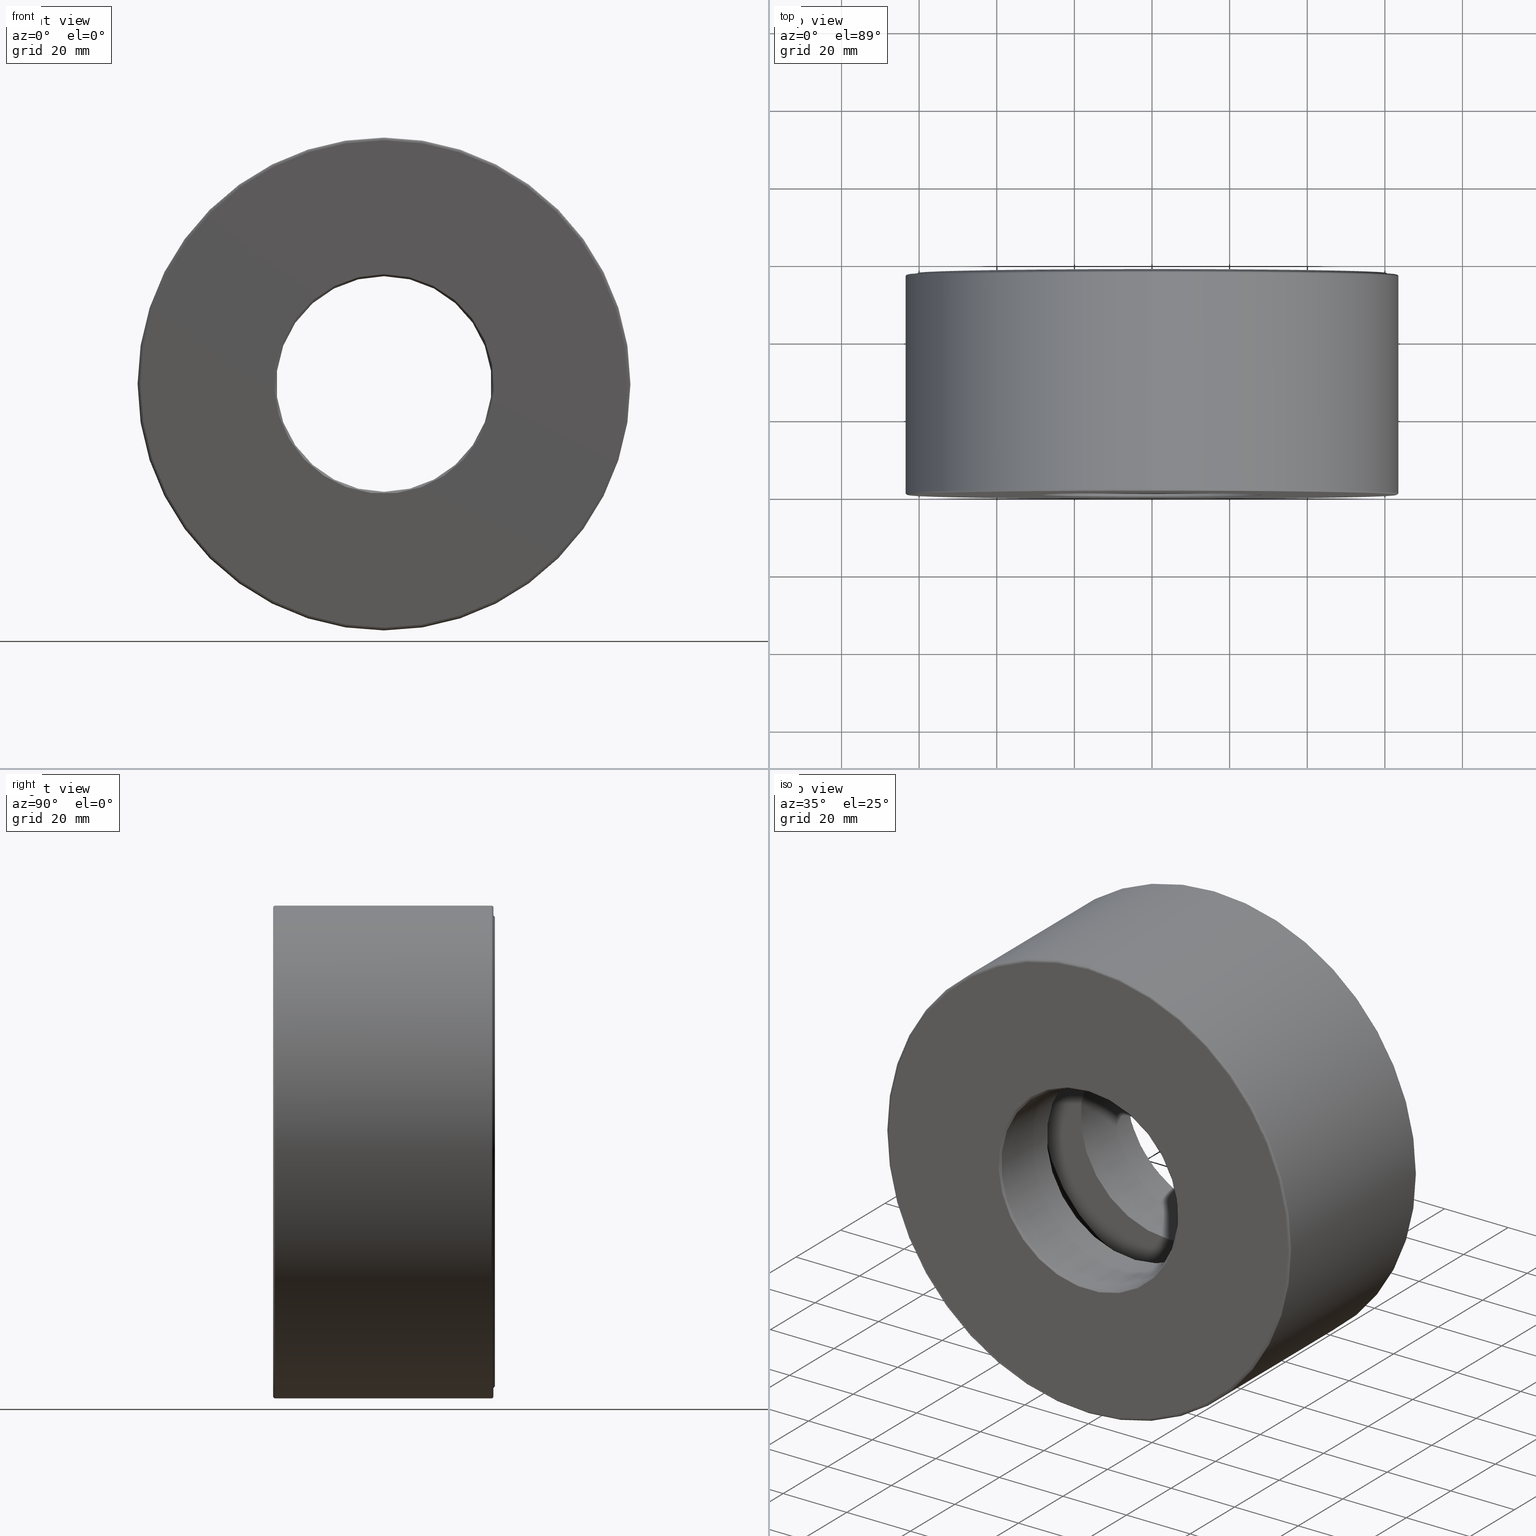
[diagram: canonical four-view strip — front | top / right | iso, engineering-drawing reading convention]
A machine part, canonical four-view strip (front | top / right | iso — engineering-drawing reading convention). The complete STEP part file that produces these views, byte-faithful:
ISO-10303-21;
HEADER;
FILE_DESCRIPTION (( 'STEP AP203' ),
    '1' );
FILE_NAME ('T-100-48.step',
    '2016-06-29T18:27:41',
    ( '' ),
    ( '' ),
    'SwSTEP 2.0',
    'SolidWorks 2016',
    '' );
FILE_SCHEMA (( 'CONFIG_CONTROL_DESIGN' ));
ENDSEC;

DATA;
#1 = FACE_OUTER_BOUND ( 'NONE', #229, .T. ) ;
#2 = CARTESIAN_POINT ( 'NONE',  ( 0.0000000000000000000, -1.515321933985646100E-016, 0.0000000000000000000 ) ) ;
#3 = CARTESIAN_POINT ( 'NONE',  ( 0.0000000000000000000, 0.0000000000000000000, 0.0000000000000000000 ) ) ;
#4 = CARTESIAN_POINT ( 'NONE',  ( 0.0000000000000000000, 1.125000000000000000, 0.0000000000000000000 ) ) ;
#5 = EDGE_LOOP ( 'NONE', ( #313 ) ) ;
#6 = ADVANCED_FACE ( 'NONE', ( #316, #69 ), #331, .F. ) ;
#7 = EDGE_LOOP ( 'NONE', ( #575 ) ) ;
#8 = DIRECTION ( 'NONE',  ( 0.0000000000000000000, 0.0000000000000000000, 1.000000000000000000 ) ) ;
#9 = CARTESIAN_POINT ( 'NONE',  ( -2.361209633078072800E-016, 0.8250000000000004000, 0.0000000000000000000 ) ) ;
#10 = ADVANCED_FACE ( 'NONE', ( ), #300, .T. ) ;
#11 = CARTESIAN_POINT ( 'NONE',  ( 0.0000000000000000000, 2.249999999999999600, 0.0000000000000000000 ) ) ;
#12 = ORIENTED_EDGE ( 'NONE', *, *, #188, .T. ) ;
#13 = AXIS2_PLACEMENT_3D ( 'NONE', #82, #453, #264 ) ;
#14 = DIRECTION ( 'NONE',  ( 0.0000000000000000000, 0.0000000000000000000, -1.000000000000000000 ) ) ;
#15 = VERTEX_POINT ( 'NONE', #44 ) ;
#16 = CIRCLE ( 'NONE', #459, 2.480000000000000400 ) ;
#17 = DIRECTION ( 'NONE',  ( -0.0000000000000000000, 1.000000000000000000, -0.0000000000000000000 ) ) ;
#18 = APPROVAL_ROLE ( '' ) ;
#19 = EDGE_CURVE ( 'NONE', #521, #521, #329, .T. ) ;
#20 = ORIENTED_EDGE ( 'NONE', *, *, #528, .T. ) ;
#21 = AXIS2_PLACEMENT_3D ( 'NONE', #319, #410, #85 ) ;
#22 = VERTEX_POINT ( 'NONE', #243 ) ;
#23 = PERSON_AND_ORGANIZATION ( #356, #376 ) ;
#24 = AXIS2_PLACEMENT_3D ( 'NONE', #340, #444, #266 ) ;
#25 = DIRECTION ( 'NONE',  ( 0.0000000000000000000, 0.0000000000000000000, 1.000000000000000000 ) ) ;
#26 = PRODUCT_DEFINITION_SHAPE ( 'NONE', 'NONE',  #348 ) ;
#27 = ORIENTED_EDGE ( 'NONE', *, *, #590, .F. ) ;
#28 = EDGE_CURVE ( 'NONE', #204, #204, #315, .T. ) ;
#29 = SPHERICAL_SURFACE ( 'NONE', #55, 0.5000000000000002200 ) ;
#30 = CC_DESIGN_SECURITY_CLASSIFICATION ( #213, ( #125 ) ) ;
#31 = ORIENTED_EDGE ( 'NONE', *, *, #148, .T. ) ;
#32 = DIRECTION ( 'NONE',  ( 1.000000000000000000, 0.0000000000000000000, -1.047444401652940000E-014 ) ) ;
#33 = DIRECTION ( 'NONE',  ( 0.0000000000000000000, -1.000000000000000000, 0.0000000000000000000 ) ) ;
#34 = EDGE_CURVE ( 'NONE', #72, #72, #41, .T. ) ;
#35 = CLOSED_SHELL ( 'NONE', ( #200 ) ) ;
#36 = CARTESIAN_POINT ( 'NONE',  ( 0.0000000000000000000, -1.515321933985645800E-016, 0.0000000000000000000 ) ) ;
#37 = FACE_OUTER_BOUND ( 'NONE', #245, .T. ) ;
#38 = DIRECTION ( 'NONE',  ( -0.0000000000000000000, 1.000000000000000000, -0.0000000000000000000 ) ) ;
#39 = ORIENTED_EDGE ( 'NONE', *, *, #590, .T. ) ;
#40 = FACE_OUTER_BOUND ( 'NONE', #440, .T. ) ;
#41 = CIRCLE ( 'NONE', #65, 2.484999999999999400 ) ;
#42 = EDGE_LOOP ( 'NONE', ( #39 ) ) ;
#43 = AXIS2_PLACEMENT_3D ( 'NONE', #558, #556, #199 ) ;
#44 = CARTESIAN_POINT ( 'NONE',  ( 0.0000000000000000000, 0.8250000000000000700, 2.480000000000000400 ) ) ;
#45 = CARTESIAN_POINT ( 'NONE',  ( -1.970999999999999900, 1.125000000000000200, 0.0000000000000000000 ) ) ;
#46 = DIRECTION ( 'NONE',  ( 0.0000000000000000000, 0.0000000000000000000, 1.000000000000000000 ) ) ;
#47 = ADVANCED_FACE ( 'NONE', ( ), #118, .T. ) ;
#48 = SECURITY_CLASSIFICATION_LEVEL ( 'unclassified' ) ;
#49 = ORIENTED_EDGE ( 'NONE', *, *, #436, .F. ) ;
#50 = DIRECTION ( 'NONE',  ( 0.0000000000000000000, 0.0000000000000000000, 1.000000000000000000 ) ) ;
#51 = FACE_OUTER_BOUND ( 'NONE', #79, .T. ) ;
#52 = EDGE_CURVE ( 'NONE', #22, #22, #451, .T. ) ;
#53 = DIRECTION ( 'NONE',  ( -0.0000000000000000000, 1.000000000000000000, -0.0000000000000000000 ) ) ;
#54 = CC_DESIGN_DATE_AND_TIME_ASSIGNMENT ( #353, #192, ( #348 ) ) ;
#55 = AXIS2_PLACEMENT_3D ( 'NONE', #254, #571, #394 ) ;
#56 = CARTESIAN_POINT ( 'NONE',  ( 0.0000000000000000000, 0.0000000000000000000, 0.0000000000000000000 ) ) ;
#57 = ORIENTED_EDGE ( 'NONE', *, *, #557, .F. ) ;
#58 = CIRCLE ( 'NONE', #414, 1.093750000000000200 ) ;
#59 = CIRCLE ( 'NONE', #549, 1.570999999999999700 ) ;
#60 = DIRECTION ( 'NONE',  ( 0.0000000000000000000, -1.000000000000000000, 0.0000000000000000000 ) ) ;
#61 = AXIS2_PLACEMENT_3D ( 'NONE', #382, #103, #8 ) ;
#62 = DIRECTION ( 'NONE',  ( -0.0000000000000000000, 1.000000000000000000, -0.0000000000000000000 ) ) ;
#63 = CARTESIAN_POINT ( 'NONE',  ( 0.0000000000000000000, 2.230000000000000000, 0.0000000000000000000 ) ) ;
#64 = ORIENTED_EDGE ( 'NONE', *, *, #278, .T. ) ;
#65 = AXIS2_PLACEMENT_3D ( 'NONE', #2, #468, #50 ) ;
#66 = COORDINATED_UNIVERSAL_TIME_OFFSET ( 5, 0, .BEHIND. ) ;
#67 = ORIENTED_EDGE ( 'NONE', *, *, #278, .F. ) ;
#68 = FACE_OUTER_BOUND ( 'NONE', #95, .T. ) ;
#69 = FACE_BOUND ( 'NONE', #432, .T. ) ;
#70 = EDGE_LOOP ( 'NONE', ( #487 ) ) ;
#71 = AXIS2_PLACEMENT_3D ( 'NONE', #132, #407, #178 ) ;
#72 = VERTEX_POINT ( 'NONE', #415 ) ;
#73 = CARTESIAN_POINT ( 'NONE',  ( -1.450538757697839700E-015, 2.250000000000000400, 0.0000000000000000000 ) ) ;
#74 = FACE_OUTER_BOUND ( 'NONE', #156, .T. ) ;
#75 = DIRECTION ( 'NONE',  ( 1.047444401652940000E-014, 0.0000000000000000000, 1.000000000000000000 ) ) ;
#76 = ADVANCED_BREP_SHAPE_REPRESENTATION ( 'T-100-48', ( #184, #386, #170, #501, #121, #565, #505 ), #146 ) ;
#77 = AXIS2_PLACEMENT_3D ( 'NONE', #11, #60, #14 ) ;
#78 = DIRECTION ( 'NONE',  ( 0.0000000000000000000, 0.0000000000000000000, 1.000000000000000000 ) ) ;
#79 = EDGE_LOOP ( 'NONE', ( #337 ) ) ;
#80 = ORIENTED_EDGE ( 'NONE', *, *, #341, .F. ) ;
#81 = FACE_BOUND ( 'NONE', #225, .T. ) ;
#82 = CARTESIAN_POINT ( 'NONE',  ( 0.0000000000000000000, 2.214999999999999900, 0.0000000000000000000 ) ) ;
#83 = DIRECTION ( 'NONE',  ( 0.0000000000000000000, 0.0000000000000000000, 1.000000000000000000 ) ) ;
#84 = AXIS2_PLACEMENT_3D ( 'NONE', #3, #508, #289 ) ;
#85 = DIRECTION ( 'NONE',  ( 0.0000000000000000000, 0.0000000000000000000, 1.000000000000000000 ) ) ;
#86 = EDGE_LOOP ( 'NONE', ( #452 ) ) ;
#87 = VERTEX_POINT ( 'NONE', #196 ) ;
#88 = FACE_BOUND ( 'NONE', #372, .T. ) ;
#89 = CARTESIAN_POINT ( 'NONE',  ( -3.708388500185622300E-032, -1.517707079972393400E-016, 0.0000000000000000000 ) ) ;
#90 = AXIS2_PLACEMENT_3D ( 'NONE', #311, #32, #75 ) ;
#91 = MECHANICAL_CONTEXT ( 'NONE', #281, 'mechanical' ) ;
#92 = DIRECTION ( 'NONE',  ( -0.0000000000000000000, 1.000000000000000000, -0.0000000000000000000 ) ) ;
#93 = EDGE_LOOP ( 'NONE', ( #395 ) ) ;
#94 = PERSON_AND_ORGANIZATION ( #356, #376 ) ;
#95 = EDGE_LOOP ( 'NONE', ( #267 ) ) ;
#96 = FACE_BOUND ( 'NONE', #70, .T. ) ;
#97 = CARTESIAN_POINT ( 'NONE',  ( 0.0000000000000000000, 2.250000000000000400, 1.113750000000000500 ) ) ;
#98 = ORIENTED_EDGE ( 'NONE', *, *, #28, .T. ) ;
#99 = CC_DESIGN_PERSON_AND_ORGANIZATION_ASSIGNMENT ( #143, #330, ( #125 ) ) ;
#100 = COORDINATED_UNIVERSAL_TIME_OFFSET ( 5, 0, .BEHIND. ) ;
#101 = PERSON_AND_ORGANIZATION_ROLE ( 'classification_officer' ) ;
#102 = CARTESIAN_POINT ( 'NONE',  ( 0.0000000000000000000, 0.8250000000000000700, 2.371000000000000000 ) ) ;
#103 = DIRECTION ( 'NONE',  ( -0.0000000000000000000, 1.000000000000000000, 0.0000000000000000000 ) ) ;
#104 = DIRECTION ( 'NONE',  ( 0.0000000000000000000, 0.0000000000000000000, 1.000000000000000000 ) ) ;
#105 = EDGE_LOOP ( 'NONE', ( #593 ) ) ;
#106 = DIRECTION ( 'NONE',  ( -0.0000000000000000000, 1.000000000000000000, -0.0000000000000000000 ) ) ;
#107 = VERTEX_POINT ( 'NONE', #198 ) ;
#108 = SPHERICAL_SURFACE ( 'NONE', #90, 0.5000000000000002200 ) ;
#109 = PLANE ( 'NONE',  #576 ) ;
#110 = AXIS2_PLACEMENT_3D ( 'NONE', #467, #53, #46 ) ;
#111 = EDGE_LOOP ( 'NONE', ( #163 ) ) ;
#112 = COORDINATED_UNIVERSAL_TIME_OFFSET ( 5, 0, .BEHIND. ) ;
#113 = FACE_OUTER_BOUND ( 'NONE', #325, .T. ) ;
#114 = CONICAL_SURFACE ( 'NONE', #522, 2.475000000000000100, 0.7853981633974438400 ) ;
#115 = AXIS2_PLACEMENT_3D ( 'NONE', #133, #233, #599 ) ;
#116 = EDGE_LOOP ( 'NONE', ( #605 ) ) ;
#117 = VERTEX_POINT ( 'NONE', #102 ) ;
#118 = SPHERICAL_SURFACE ( 'NONE', #351, 0.5000000000000002200 ) ;
#119 = SHAPE_DEFINITION_REPRESENTATION ( #26, #76 ) ;
#120 = AXIS2_PLACEMENT_3D ( 'NONE', #447, #171, #168 ) ;
#121 = MANIFOLD_SOLID_BREP ( 'BALLS[2]', #304 ) ;
#122 = DIRECTION ( 'NONE',  ( 0.0000000000000000000, -1.000000000000000000, 0.0000000000000000000 ) ) ;
#123 = AXIS2_PLACEMENT_3D ( 'NONE', #73, #261, #357 ) ;
#124 = EDGE_LOOP ( 'NONE', ( #130 ) ) ;
#125 = PRODUCT_DEFINITION_FORMATION_WITH_SPECIFIED_SOURCE ( 'ANY', '', #302, .NOT_KNOWN. ) ;
#126 = FACE_OUTER_BOUND ( 'NONE', #450, .T. ) ;
#127 = CARTESIAN_POINT ( 'NONE',  ( 0.0000000000000000000, 2.230000000000000000, 0.0000000000000000000 ) ) ;
#128 = CC_DESIGN_PERSON_AND_ORGANIZATION_ASSIGNMENT ( #23, #560, ( #348 ) ) ;
#129 = DIRECTION ( 'NONE',  ( -0.0000000000000000000, 1.000000000000000000, -0.0000000000000000000 ) ) ;
#130 = ORIENTED_EDGE ( 'NONE', *, *, #400, .T. ) ;
#131 = VERTEX_POINT ( 'NONE', #562 ) ;
#132 = CARTESIAN_POINT ( 'NONE',  ( 0.0000000000000000000, 2.214999999999999900, 0.0000000000000000000 ) ) ;
#133 = CARTESIAN_POINT ( 'NONE',  ( 0.0000000000000000000, 0.8250000000000000700, 0.0000000000000000000 ) ) ;
#134 = ORIENTED_EDGE ( 'NONE', *, *, #482, .F. ) ;
#135 = DIRECTION ( 'NONE',  ( 0.0000000000000000000, -1.000000000000000000, 0.0000000000000000000 ) ) ;
#136 = CIRCLE ( 'NONE', #359, 1.093750000000000200 ) ;
#137 = DIRECTION ( 'NONE',  ( 0.0000000000000000000, 0.0000000000000000000, -1.000000000000000000 ) ) ;
#138 = AXIS2_PLACEMENT_3D ( 'NONE', #227, #162, #536 ) ;
#139 = CIRCLE ( 'NONE', #368, 1.570999999999999700 ) ;
#140 = ADVANCED_FACE ( 'NONE', ( #262, #232 ), #276, .F. ) ;
#141 = CARTESIAN_POINT ( 'NONE',  ( 0.0000000000000000000, 2.048885995248197400E-016, 1.113750000000000500 ) ) ;
#142 = CARTESIAN_POINT ( 'NONE',  ( 0.0000000000000000000, -1.520092225959140700E-016, 2.480000000000000400 ) ) ;
#143 = PERSON_AND_ORGANIZATION ( #356, #376 ) ;
#144 = DIRECTION ( 'NONE',  ( -0.0000000000000000000, 1.000000000000000000, -0.0000000000000000000 ) ) ;
#145 = DIRECTION ( 'NONE',  ( 0.0000000000000000000, 0.0000000000000000000, 1.000000000000000000 ) ) ;
#146 =( GEOMETRIC_REPRESENTATION_CONTEXT ( 3 ) GLOBAL_UNCERTAINTY_ASSIGNED_CONTEXT ( ( #318 ) ) GLOBAL_UNIT_ASSIGNED_CONTEXT ( ( #333, #378, #515 ) ) REPRESENTATION_CONTEXT ( 'NONE', 'WORKASPACE' ) );
#147 = CARTESIAN_POINT ( 'NONE',  ( 0.0000000000000000000, 0.8250000000000001800, 1.570999999999999700 ) ) ;
#148 = EDGE_CURVE ( 'NONE', #497, #497, #59, .T. ) ;
#149 = CARTESIAN_POINT ( 'NONE',  ( 0.0000000000000000000, 0.8250000000000001800, 0.0000000000000000000 ) ) ;
#150 = ADVANCED_FACE ( 'NONE', ( #554, #523 ), #374, .F. ) ;
#151 = APPROVAL_STATUS ( 'not_yet_approved' ) ;
#152 = ORIENTED_EDGE ( 'NONE', *, *, #564, .T. ) ;
#153 = VERTEX_POINT ( 'NONE', #284 ) ;
#154 = FACE_OUTER_BOUND ( 'NONE', #574, .T. ) ;
#155 = AXIS2_PLACEMENT_3D ( 'NONE', #518, #344, #569 ) ;
#156 = EDGE_LOOP ( 'NONE', ( #31 ) ) ;
#157 = DIRECTION ( 'NONE',  ( 0.0000000000000000000, 0.0000000000000000000, 1.000000000000000000 ) ) ;
#158 = CC_DESIGN_DATE_AND_TIME_ASSIGNMENT ( #251, #429, ( #213 ) ) ;
#159 = EDGE_LOOP ( 'NONE', ( #399 ) ) ;
#160 = TOROIDAL_SURFACE ( 'NONE', #282, 1.970999999999999900, 0.5000000000000000000 ) ;
#161 = DIRECTION ( 'NONE',  ( 0.0000000000000000000, -1.000000000000000000, 0.0000000000000000000 ) ) ;
#162 = DIRECTION ( 'NONE',  ( -0.0000000000000000000, 1.000000000000000000, -0.0000000000000000000 ) ) ;
#163 = ORIENTED_EDGE ( 'NONE', *, *, #408, .F. ) ;
#164 = VERTEX_POINT ( 'NONE', #141 ) ;
#165 = FACE_BOUND ( 'NONE', #527, .T. ) ;
#166 = DIRECTION ( 'NONE',  ( 0.0000000000000000000, -0.0000000000000000000, -1.000000000000000000 ) ) ;
#167 = AXIS2_PLACEMENT_3D ( 'NONE', #491, #355, #492 ) ;
#168 = DIRECTION ( 'NONE',  ( 0.0000000000000000000, 0.0000000000000000000, 1.000000000000000000 ) ) ;
#169 = ADVANCED_FACE ( 'NONE', ( #195, #126 ), #109, .T. ) ;
#170 = MANIFOLD_SOLID_BREP ( 'Revolve3', #358 ) ;
#171 = DIRECTION ( 'NONE',  ( -0.0000000000000000000, 1.000000000000000000, -0.0000000000000000000 ) ) ;
#172 = EDGE_LOOP ( 'NONE', ( #586 ) ) ;
#173 = FACE_OUTER_BOUND ( 'NONE', #530, .T. ) ;
#174 = EDGE_LOOP ( 'NONE', ( #543 ) ) ;
#175 = APPROVAL_PERSON_ORGANIZATION ( #507, #572, #418 ) ;
#176 = DIRECTION ( 'NONE',  ( 0.0000000000000000000, 0.0000000000000000000, 1.000000000000000000 ) ) ;
#177 = CC_DESIGN_APPROVAL ( #207, ( #125 ) ) ;
#178 = DIRECTION ( 'NONE',  ( 0.0000000000000000000, 0.0000000000000000000, 1.000000000000000000 ) ) ;
#179 = DIRECTION ( 'NONE',  ( 0.0000000000000000000, -0.0000000000000000000, -1.000000000000000000 ) ) ;
#180 = ORIENTED_EDGE ( 'NONE', *, *, #535, .T. ) ;
#181 = AXIS2_PLACEMENT_3D ( 'NONE', #584, #33, #534 ) ;
#182 = FACE_OUTER_BOUND ( 'NONE', #5, .T. ) ;
#183 = CARTESIAN_POINT ( 'NONE',  ( 0.0000000000000000000, 1.425000000000000300, 0.0000000000000000000 ) ) ;
#184 = MANIFOLD_SOLID_BREP ( 'Revolve2[1]', #273 ) ;
#185 = DESIGN_CONTEXT ( 'detailed design', #244, 'design' ) ;
#186 = ADVANCED_FACE ( 'NONE', ( #154, #595 ), #294, .F. ) ;
#187 = DIRECTION ( 'NONE',  ( 0.0000000000000000000, 0.0000000000000000000, 1.000000000000000000 ) ) ;
#188 = EDGE_CURVE ( 'NONE', #153, #153, #139, .T. ) ;
#189 = CARTESIAN_POINT ( 'NONE',  ( 0.0000000000000000000, -1.515321933985645800E-016, 2.475000000000000100 ) ) ;
#190 = DIRECTION ( 'NONE',  ( 0.0000000000000000000, 0.0000000000000000000, 1.000000000000000000 ) ) ;
#191 = EDGE_LOOP ( 'NONE', ( #345 ) ) ;
#192 = DATE_TIME_ROLE ( 'creation_date' ) ;
#193 = EDGE_LOOP ( 'NONE', ( #498 ) ) ;
#194 = DIRECTION ( 'NONE',  ( -0.0000000000000000000, 1.000000000000000000, -0.0000000000000000000 ) ) ;
#195 = FACE_BOUND ( 'NONE', #7, .T. ) ;
#196 = CARTESIAN_POINT ( 'NONE',  ( 0.0000000000000000000, 2.234999999999999900, 2.480000000000000400 ) ) ;
#197 = DIRECTION ( 'NONE',  ( 0.0000000000000000000, 0.0000000000000000000, 1.000000000000000000 ) ) ;
#198 = CARTESIAN_POINT ( 'NONE',  ( 0.0000000000000000000, 2.230000000000000000, 1.093750000000000200 ) ) ;
#199 = DIRECTION ( 'NONE',  ( -1.000000000000000000, 0.0000000000000000000, 6.982962677686269100E-015 ) ) ;
#200 = ADVANCED_FACE ( 'NONE', ( ), #29, .T. ) ;
#201 = CARTESIAN_POINT ( 'NONE',  ( 0.0000000000000000000, 0.02000000000000060800, 1.093750000000000000 ) ) ;
#202 = DIRECTION ( 'NONE',  ( -0.0000000000000000000, 1.000000000000000000, -0.0000000000000000000 ) ) ;
#203 = ADVANCED_FACE ( 'NONE', ( #532, #68 ), #253, .F. ) ;
#204 = VERTEX_POINT ( 'NONE', #142 ) ;
#205 = FACE_BOUND ( 'NONE', #454, .T. ) ;
#206 = DIRECTION ( 'NONE',  ( 0.0000000000000000000, 0.0000000000000000000, 1.000000000000000000 ) ) ;
#207 = APPROVAL ( #510, 'UNSPECIFIED' ) ;
#208 = CARTESIAN_POINT ( 'NONE',  ( 0.0000000000000000000, -1.515321933985645800E-016, 0.0000000000000000000 ) ) ;
#209 = AXIS2_PLACEMENT_3D ( 'NONE', #361, #38, #83 ) ;
#210 = ORIENTED_EDGE ( 'NONE', *, *, #34, .F. ) ;
#211 = CIRCLE ( 'NONE', #263, 1.113750000000000500 ) ;
#212 = CALENDAR_DATE ( 2016, 29, 6 ) ;
#213 = SECURITY_CLASSIFICATION ( '', '', #48 ) ;
#214 = ORIENTED_EDGE ( 'NONE', *, *, #438, .T. ) ;
#215 = VERTEX_POINT ( 'NONE', #97 ) ;
#216 = DIRECTION ( 'NONE',  ( 0.0000000000000000000, -0.0000000000000000000, -1.000000000000000000 ) ) ;
#217 = FACE_OUTER_BOUND ( 'NONE', #461, .T. ) ;
#218 = APPROVAL_DATE_TIME ( #526, #572 ) ;
#219 = AXIS2_PLACEMENT_3D ( 'NONE', #403, #129, #78 ) ;
#220 = PLANE ( 'NONE',  #583 ) ;
#221 = AXIS2_PLACEMENT_3D ( 'NONE', #601, #500, #321 ) ;
#222 = CARTESIAN_POINT ( 'NONE',  ( 0.0000000000000000000, 0.0000000000000000000, 0.0000000000000000000 ) ) ;
#223 = CLOSED_SHELL ( 'NONE', ( #519, #140, #169, #203, #301, #371, #257, #288 ) ) ;
#224 = ADVANCED_FACE ( 'NONE', ( #506, #74 ), #524, .F. ) ;
#225 = EDGE_LOOP ( 'NONE', ( #80 ) ) ;
#226 = FACE_BOUND ( 'NONE', #537, .T. ) ;
#227 = CARTESIAN_POINT ( 'NONE',  ( 0.0000000000000000000, 1.425000000000000300, 0.0000000000000000000 ) ) ;
#228 = CARTESIAN_POINT ( 'NONE',  ( 0.0000000000000000000, 2.249999999999999600, 0.0000000000000000000 ) ) ;
#229 = EDGE_LOOP ( 'NONE', ( #255 ) ) ;
#230 = APPROVAL_PERSON_ORGANIZATION ( #306, #207, #241 ) ;
#231 = CYLINDRICAL_SURFACE ( 'NONE', #21, 2.500000000000000000 ) ;
#232 = FACE_OUTER_BOUND ( 'NONE', #483, .T. ) ;
#233 = DIRECTION ( 'NONE',  ( -0.0000000000000000000, 1.000000000000000000, -0.0000000000000000000 ) ) ;
#234 = CARTESIAN_POINT ( 'NONE',  ( 0.0000000000000000000, 0.02000000000000060800, 0.0000000000000000000 ) ) ;
#235 = DIRECTION ( 'NONE',  ( 0.0000000000000000000, 0.0000000000000000000, 1.000000000000000000 ) ) ;
#236 = EDGE_LOOP ( 'NONE', ( #320 ) ) ;
#237 = AXIS2_PLACEMENT_3D ( 'NONE', #228, #606, #406 ) ;
#238 = FACE_BOUND ( 'NONE', #42, .T. ) ;
#239 = LOCAL_TIME ( 14, 27, 41.00000000000000000, #546 ) ;
#240 = FACE_OUTER_BOUND ( 'NONE', #563, .T. ) ;
#241 = APPROVAL_ROLE ( '' ) ;
#242 = ADVANCED_FACE ( 'NONE', ( #173, #392 ), #573, .F. ) ;
#243 = CARTESIAN_POINT ( 'NONE',  ( 0.0000000000000000000, 2.234999999999999900, 2.420000000000000400 ) ) ;
#244 = APPLICATION_CONTEXT ( 'configuration controlled 3d designs of mechanical parts and assemblies' ) ;
#245 = EDGE_LOOP ( 'NONE', ( #327 ) ) ;
#246 = CARTESIAN_POINT ( 'NONE',  ( 0.0000000000000000000, -1.520092225959140700E-016, 0.0000000000000000000 ) ) ;
#247 = FACE_OUTER_BOUND ( 'NONE', #105, .T. ) ;
#248 = CARTESIAN_POINT ( 'NONE',  ( 0.0000000000000000000, 0.0000000000000000000, 0.0000000000000000000 ) ) ;
#249 = DIRECTION ( 'NONE',  ( 0.0000000000000000000, -0.0000000000000000000, -1.000000000000000000 ) ) ;
#250 = EDGE_LOOP ( 'NONE', ( #134 ) ) ;
#251 = DATE_AND_TIME ( #552, #373 ) ;
#252 = VERTEX_POINT ( 'NONE', #380 ) ;
#253 = CYLINDRICAL_SURFACE ( 'NONE', #271, 1.093750000000000200 ) ;
#254 = CARTESIAN_POINT ( 'NONE',  ( 6.881709718859815600E-015, 1.125000000000000200, 1.970999999999999900 ) ) ;
#255 = ORIENTED_EDGE ( 'NONE', *, *, #19, .F. ) ;
#256 = LENGTH_MEASURE_WITH_UNIT ( LENGTH_MEASURE( 0.02539999999999999900 ), #332 );
#257 = ADVANCED_FACE ( 'NONE', ( #428, #354 ), #481, .T. ) ;
#258 = DIRECTION ( 'NONE',  ( 0.0000000000000000000, 0.0000000000000000000, 1.000000000000000000 ) ) ;
#259 = EDGE_LOOP ( 'NONE', ( #448 ) ) ;
#260 = VERTEX_POINT ( 'NONE', #189 ) ;
#261 = DIRECTION ( 'NONE',  ( -0.0000000000000000000, 1.000000000000000000, 0.0000000000000000000 ) ) ;
#262 = FACE_OUTER_BOUND ( 'NONE', #496, .T. ) ;
#263 = AXIS2_PLACEMENT_3D ( 'NONE', #589, #493, #309 ) ;
#264 = DIRECTION ( 'NONE',  ( 0.0000000000000000000, 0.0000000000000000000, 1.000000000000000000 ) ) ;
#265 = DIRECTION ( 'NONE',  ( 0.0000000000000000000, 0.0000000000000000000, 1.000000000000000000 ) ) ;
#266 = DIRECTION ( 'NONE',  ( 0.0000000000000000000, 0.0000000000000000000, 1.000000000000000000 ) ) ;
#267 = ORIENTED_EDGE ( 'NONE', *, *, #494, .F. ) ;
#268 = VERTEX_POINT ( 'NONE', #323 ) ;
#269 = DIRECTION ( 'NONE',  ( -0.0000000000000000000, 1.000000000000000000, -0.0000000000000000000 ) ) ;
#270 = DIRECTION ( 'NONE',  ( -0.0000000000000000000, 1.000000000000000000, -0.0000000000000000000 ) ) ;
#271 = AXIS2_PLACEMENT_3D ( 'NONE', #56, #439, #206 ) ;
#272 = ADVANCED_FACE ( 'NONE', ( #547, #307 ), #360, .T. ) ;
#273 = CLOSED_SHELL ( 'NONE', ( #600, #349, #441, #6, #150, #412, #388, #567, #272, #512, #186, #280, #242, #335, #603, #224 ) ) ;
#274 = DIRECTION ( 'NONE',  ( 0.0000000000000000000, 0.0000000000000000000, 1.000000000000000000 ) ) ;
#275 = VERTEX_POINT ( 'NONE', #462 ) ;
#276 = TOROIDAL_SURFACE ( 'NONE', #430, 1.970999999999999900, 0.5000000000000002200 ) ;
#277 = DIRECTION ( 'NONE',  ( 0.0000000000000000000, 0.0000000000000000000, 1.000000000000000000 ) ) ;
#278 = EDGE_CURVE ( 'NONE', #87, #87, #16, .T. ) ;
#279 = APPROVAL_STATUS ( 'not_yet_approved' ) ;
#280 = ADVANCED_FACE ( 'NONE', ( #182, #226 ), #114, .T. ) ;
#281 = APPLICATION_CONTEXT ( 'configuration controlled 3d designs of mechanical parts and assemblies' ) ;
#282 = AXIS2_PLACEMENT_3D ( 'NONE', #286, #144, #104 ) ;
#283 = FACE_OUTER_BOUND ( 'NONE', #259, .T. ) ;
#284 = CARTESIAN_POINT ( 'NONE',  ( 0.0000000000000000000, 1.425000000000000300, 1.570999999999999700 ) ) ;
#285 = DIRECTION ( 'NONE',  ( -0.0000000000000000000, 1.000000000000000000, -0.0000000000000000000 ) ) ;
#286 = CARTESIAN_POINT ( 'NONE',  ( 0.0000000000000000000, 1.125000000000000000, 0.0000000000000000000 ) ) ;
#287 = DIRECTION ( 'NONE',  ( -0.0000000000000000000, 1.000000000000000000, -0.0000000000000000000 ) ) ;
#288 = ADVANCED_FACE ( 'NONE', ( #587, #1 ), #413, .T. ) ;
#289 = DIRECTION ( 'NONE',  ( 0.0000000000000000000, 0.0000000000000000000, 1.000000000000000000 ) ) ;
#290 = DIRECTION ( 'NONE',  ( 0.0000000000000000000, 0.0000000000000000000, 1.000000000000000000 ) ) ;
#291 = EDGE_LOOP ( 'NONE', ( #67 ) ) ;
#292 = CARTESIAN_POINT ( 'NONE',  ( 0.0000000000000000000, 2.234999999999999900, 0.0000000000000000000 ) ) ;
#293 = CC_DESIGN_APPROVAL ( #397, ( #213 ) ) ;
#294 = CYLINDRICAL_SURFACE ( 'NONE', #155, 2.480000000000000400 ) ;
#295 = EDGE_LOOP ( 'NONE', ( #585 ) ) ;
#296 = EDGE_CURVE ( 'NONE', #525, #525, #581, .T. ) ;
#297 = CARTESIAN_POINT ( 'NONE',  ( 0.0000000000000000000, 0.0000000000000000000, 0.0000000000000000000 ) ) ;
#298 = APPROVAL_DATE_TIME ( #419, #397 ) ;
#299 = ORIENTED_EDGE ( 'NONE', *, *, #400, .F. ) ;
#300 = SPHERICAL_SURFACE ( 'NONE', #43, 0.5000000000000002200 ) ;
#301 = ADVANCED_FACE ( 'NONE', ( #540, #205 ), #490, .F. ) ;
#302 = PRODUCT ( 'T-100-48', 'T-100-48', '', ( #91 ) ) ;
#303 = CARTESIAN_POINT ( 'NONE',  ( 0.0000000000000000000, -1.515321933985646100E-016, 0.0000000000000000000 ) ) ;
#304 = CLOSED_SHELL ( 'NONE', ( #10 ) ) ;
#305 = VERTEX_POINT ( 'NONE', #511 ) ;
#306 = PERSON_AND_ORGANIZATION ( #356, #376 ) ;
#307 = FACE_BOUND ( 'NONE', #159, .T. ) ;
#308 = DIRECTION ( 'NONE',  ( -0.0000000000000000000, 1.000000000000000000, -0.0000000000000000000 ) ) ;
#309 = DIRECTION ( 'NONE',  ( 0.0000000000000000000, 0.0000000000000000000, 1.000000000000000000 ) ) ;
#310 = AXIS2_PLACEMENT_3D ( 'NONE', #470, #287, #334 ) ;
#311 = CARTESIAN_POINT ( 'NONE',  ( -2.064512915657944700E-014, 1.125000000000000200, -1.970999999999999900 ) ) ;
#312 = ORIENTED_EDGE ( 'NONE', *, *, #482, .T. ) ;
#313 = ORIENTED_EDGE ( 'NONE', *, *, #564, .F. ) ;
#314 = PLANE ( 'NONE',  #123 ) ;
#315 = CIRCLE ( 'NONE', #449, 2.480000000000000400 ) ;
#316 = FACE_OUTER_BOUND ( 'NONE', #111, .T. ) ;
#317 = DIRECTION ( 'NONE',  ( -0.0000000000000000000, 1.000000000000000000, -0.0000000000000000000 ) ) ;
#318 = UNCERTAINTY_MEASURE_WITH_UNIT (LENGTH_MEASURE( 1.000000000000000100E-005 ), #333, 'distance_accuracy_value', 'NONE');
#319 = CARTESIAN_POINT ( 'NONE',  ( 0.0000000000000000000, 0.0000000000000000000, 0.0000000000000000000 ) ) ;
#320 = ORIENTED_EDGE ( 'NONE', *, *, #502, .F. ) ;
#321 = DIRECTION ( 'NONE',  ( 0.0000000000000000000, 0.0000000000000000000, 1.000000000000000000 ) ) ;
#322 = PLANE ( 'NONE',  #533 ) ;
#323 = CARTESIAN_POINT ( 'NONE',  ( 0.0000000000000000000, 1.425000000000000300, 1.093750000000000200 ) ) ;
#324 = AXIS2_PLACEMENT_3D ( 'NONE', #303, #202, #258 ) ;
#325 = EDGE_LOOP ( 'NONE', ( #553 ) ) ;
#326 = APPLICATION_PROTOCOL_DEFINITION ( 'international standard', 'config_control_design', 1994, #244 ) ;
#327 = ORIENTED_EDGE ( 'NONE', *, *, #417, .F. ) ;
#328 = CIRCLE ( 'NONE', #13, 2.480000000000000400 ) ;
#329 = CIRCLE ( 'NONE', #499, 2.473000000000000300 ) ;
#330 = PERSON_AND_ORGANIZATION_ROLE ( 'design_supplier' ) ;
#331 = PLANE ( 'NONE',  #61 ) ;
#332 =( LENGTH_UNIT ( ) NAMED_UNIT ( * ) SI_UNIT ( $, .METRE. ) );
#333 =( CONVERSION_BASED_UNIT ( 'INCH', #256 ) LENGTH_UNIT ( ) NAMED_UNIT ( #568 ) );
#334 = DIRECTION ( 'NONE',  ( 0.0000000000000000000, 0.0000000000000000000, 1.000000000000000000 ) ) ;
#335 = ADVANCED_FACE ( 'NONE', ( #240, #165 ), #474, .F. ) ;
#336 = PRODUCT_RELATED_PRODUCT_CATEGORY ( 'detail', '', ( #302 ) ) ;
#337 = ORIENTED_EDGE ( 'NONE', *, *, #528, .F. ) ;
#338 = FACE_OUTER_BOUND ( 'NONE', #124, .T. ) ;
#339 = FACE_OUTER_BOUND ( 'NONE', #434, .T. ) ;
#340 = CARTESIAN_POINT ( 'NONE',  ( 0.0000000000000000000, 2.214999999999999900, 0.0000000000000000000 ) ) ;
#341 = EDGE_CURVE ( 'NONE', #215, #215, #211, .T. ) ;
#342 = DIRECTION ( 'NONE',  ( 0.0000000000000000000, -1.000000000000000000, 0.0000000000000000000 ) ) ;
#343 = EDGE_LOOP ( 'NONE', ( #312 ) ) ;
#344 = DIRECTION ( 'NONE',  ( -0.0000000000000000000, 1.000000000000000000, -0.0000000000000000000 ) ) ;
#345 = ORIENTED_EDGE ( 'NONE', *, *, #19, .T. ) ;
#346 = FACE_OUTER_BOUND ( 'NONE', #291, .T. ) ;
#347 = CLOSED_SHELL ( 'NONE', ( #369 ) ) ;
#348 = PRODUCT_DEFINITION ( 'UNKNOWN', '', #125, #185 ) ;
#349 = ADVANCED_FACE ( 'NONE', ( #96, #464 ), #220, .F. ) ;
#350 = EDGE_LOOP ( 'NONE', ( #214 ) ) ;
#351 = AXIS2_PLACEMENT_3D ( 'NONE', #45, #137, #460 ) ;
#352 = CYLINDRICAL_SURFACE ( 'NONE', #591, 2.480000000000000400 ) ;
#353 = DATE_AND_TIME ( #365, #239 ) ;
#354 = FACE_BOUND ( 'NONE', #174, .T. ) ;
#355 = DIRECTION ( 'NONE',  ( 0.0000000000000000000, -1.000000000000000000, 0.0000000000000000000 ) ) ;
#356 = PERSON ( 'UNSPECIFIED', 'UNSPECIFIED', 'UNSPECIFIED', ('UNSPECIFIED'), ('UNSPECIFIED'), ('UNSPECIFIED') ) ;
#357 = DIRECTION ( 'NONE',  ( 0.0000000000000000000, 0.0000000000000000000, 1.000000000000000000 ) ) ;
#358 = CLOSED_SHELL ( 'NONE', ( #47 ) ) ;
#359 = AXIS2_PLACEMENT_3D ( 'NONE', #127, #308, #265 ) ;
#360 = CONICAL_SURFACE ( 'NONE', #324, 2.484999999999999400, 0.7853981633974341800 ) ;
#361 = CARTESIAN_POINT ( 'NONE',  ( 0.0000000000000000000, 2.048885995248197400E-016, 0.0000000000000000000 ) ) ;
#362 = ORIENTED_EDGE ( 'NONE', *, *, #28, .F. ) ;
#363 = DIRECTION ( 'NONE',  ( -0.0000000000000000000, 1.000000000000000000, 0.0000000000000000000 ) ) ;
#364 = CIRCLE ( 'NONE', #445, 2.480000000000000400 ) ;
#365 = CALENDAR_DATE ( 2016, 29, 6 ) ;
#366 = DIRECTION ( 'NONE',  ( 0.0000000000000000000, 0.0000000000000000000, 1.000000000000000000 ) ) ;
#367 = PLANE ( 'NONE',  #455 ) ;
#368 = AXIS2_PLACEMENT_3D ( 'NONE', #477, #62, #582 ) ;
#369 = ADVANCED_FACE ( 'NONE', ( ), #108, .T. ) ;
#370 = CARTESIAN_POINT ( 'NONE',  ( 0.0000000000000000000, 1.425000000000000300, 0.0000000000000000000 ) ) ;
#371 = ADVANCED_FACE ( 'NONE', ( #443, #81 ), #314, .T. ) ;
#372 = EDGE_LOOP ( 'NONE', ( #409 ) ) ;
#373 = LOCAL_TIME ( 14, 27, 41.00000000000000000, #112 ) ;
#374 = CYLINDRICAL_SURFACE ( 'NONE', #310, 2.420000000000000400 ) ;
#375 = DIRECTION ( 'NONE',  ( 0.0000000000000000000, 0.0000000000000000000, 1.000000000000000000 ) ) ;
#376 = ORGANIZATION ( 'UNSPECIFIED', 'UNSPECIFIED', '' ) ;
#377 = DIRECTION ( 'NONE',  ( 1.000000000000000000, 0.0000000000000000000, 0.0000000000000000000 ) ) ;
#378 =( NAMED_UNIT ( * ) PLANE_ANGLE_UNIT ( ) SI_UNIT ( $, .RADIAN. ) );
#379 = CC_DESIGN_PERSON_AND_ORGANIZATION_ASSIGNMENT ( #504, #555, ( #125 ) ) ;
#380 = CARTESIAN_POINT ( 'NONE',  ( 0.0000000000000000000, 2.249999999999999600, 2.385000000000000700 ) ) ;
#381 = EDGE_LOOP ( 'NONE', ( #152 ) ) ;
#382 = CARTESIAN_POINT ( 'NONE',  ( 0.0000000000000000000, 2.214999999999999900, 0.0000000000000000000 ) ) ;
#383 = ORIENTED_EDGE ( 'NONE', *, *, #408, .T. ) ;
#384 = PERSON_AND_ORGANIZATION_ROLE ( 'design_owner' ) ;
#385 = AXIS2_PLACEMENT_3D ( 'NONE', #297, #387, #25 ) ;
#386 = MANIFOLD_SOLID_BREP ( 'Revolve2[2]', #223 ) ;
#387 = DIRECTION ( 'NONE',  ( -0.0000000000000000000, 1.000000000000000000, -0.0000000000000000000 ) ) ;
#388 = ADVANCED_FACE ( 'NONE', ( #346, #457 ), #577, .T. ) ;
#389 = ORIENTED_EDGE ( 'NONE', *, *, #188, .F. ) ;
#390 = PERSON_AND_ORGANIZATION ( #356, #376 ) ;
#391 = CIRCLE ( 'NONE', #110, 2.371000000000000000 ) ;
#392 = FACE_BOUND ( 'NONE', #350, .T. ) ;
#393 = DIRECTION ( 'NONE',  ( -0.0000000000000000000, 1.000000000000000000, -0.0000000000000000000 ) ) ;
#394 = DIRECTION ( 'NONE',  ( -3.491481338843134500E-015, 0.0000000000000000000, -1.000000000000000000 ) ) ;
#395 = ORIENTED_EDGE ( 'NONE', *, *, #557, .T. ) ;
#396 = FACE_OUTER_BOUND ( 'NONE', #343, .T. ) ;
#397 = APPROVAL ( #151, 'UNSPECIFIED' ) ;
#398 = PLANE ( 'NONE',  #167 ) ;
#399 = ORIENTED_EDGE ( 'NONE', *, *, #34, .T. ) ;
#400 = EDGE_CURVE ( 'NONE', #411, #411, #435, .T. ) ;
#401 = VERTEX_POINT ( 'NONE', #201 ) ;
#402 = DIRECTION ( 'NONE',  ( -0.0000000000000000000, 1.000000000000000000, -0.0000000000000000000 ) ) ;
#403 = CARTESIAN_POINT ( 'NONE',  ( 0.0000000000000000000, 2.214999999999999900, 0.0000000000000000000 ) ) ;
#404 = EDGE_LOOP ( 'NONE', ( #520 ) ) ;
#405 = CIRCLE ( 'NONE', #209, 1.113750000000000500 ) ;
#406 = DIRECTION ( 'NONE',  ( 0.0000000000000000000, 0.0000000000000000000, 1.000000000000000000 ) ) ;
#407 = DIRECTION ( 'NONE',  ( -0.0000000000000000000, 1.000000000000000000, -0.0000000000000000000 ) ) ;
#408 = EDGE_CURVE ( 'NONE', #442, #442, #328, .T. ) ;
#409 = ORIENTED_EDGE ( 'NONE', *, *, #52, .F. ) ;
#410 = DIRECTION ( 'NONE',  ( -0.0000000000000000000, 1.000000000000000000, -0.0000000000000000000 ) ) ;
#411 = VERTEX_POINT ( 'NONE', #423 ) ;
#412 = ADVANCED_FACE ( 'NONE', ( #88, #339 ), #398, .F. ) ;
#413 = CYLINDRICAL_SURFACE ( 'NONE', #385, 2.473000000000000300 ) ;
#414 = AXIS2_PLACEMENT_3D ( 'NONE', #370, #592, #366 ) ;
#415 = CARTESIAN_POINT ( 'NONE',  ( 0.0000000000000000000, -1.515321933985646100E-016, 2.484999999999999400 ) ) ;
#416 = DIRECTION ( 'NONE',  ( 0.0000000000000000000, 0.0000000000000000000, 1.000000000000000000 ) ) ;
#417 = EDGE_CURVE ( 'NONE', #305, #305, #566, .T. ) ;
#418 = APPROVAL_ROLE ( '' ) ;
#419 = DATE_AND_TIME ( #538, #495 ) ;
#420 = FACE_OUTER_BOUND ( 'NONE', #579, .T. ) ;
#421 = CARTESIAN_POINT ( 'NONE',  ( 0.0000000000000000000, 2.214999999999999900, 2.420000000000000800 ) ) ;
#422 = CARTESIAN_POINT ( 'NONE',  ( 0.0000000000000000000, 2.162000000000000800, 2.473000000000000300 ) ) ;
#423 = CARTESIAN_POINT ( 'NONE',  ( 0.0000000000000000000, 0.8250000000000004000, 1.093750000000000000 ) ) ;
#424 = DIRECTION ( 'NONE',  ( 0.0000000000000000000, 0.0000000000000000000, 1.000000000000000000 ) ) ;
#425 = DIRECTION ( 'NONE',  ( -0.0000000000000000000, 1.000000000000000000, -0.0000000000000000000 ) ) ;
#426 = LOCAL_TIME ( 14, 27, 41.00000000000000000, #544 ) ;
#427 = FACE_BOUND ( 'NONE', #551, .T. ) ;
#428 = FACE_OUTER_BOUND ( 'NONE', #191, .T. ) ;
#429 = DATE_TIME_ROLE ( 'classification_date' ) ;
#430 = AXIS2_PLACEMENT_3D ( 'NONE', #4, #285, #197 ) ;
#431 = DIRECTION ( 'NONE',  ( 0.0000000000000000000, 0.0000000000000000000, 1.000000000000000000 ) ) ;
#432 = EDGE_LOOP ( 'NONE', ( #503 ) ) ;
#433 = APPROVAL_PERSON_ORGANIZATION ( #94, #397, #18 ) ;
#434 = EDGE_LOOP ( 'NONE', ( #64 ) ) ;
#435 = CIRCLE ( 'NONE', #120, 1.093750000000000000 ) ;
#436 = EDGE_CURVE ( 'NONE', #107, #107, #136, .T. ) ;
#437 = AXIS2_PLACEMENT_3D ( 'NONE', #458, #269, #235 ) ;
#438 = EDGE_CURVE ( 'NONE', #164, #164, #405, .T. ) ;
#439 = DIRECTION ( 'NONE',  ( -0.0000000000000000000, 1.000000000000000000, -0.0000000000000000000 ) ) ;
#440 = EDGE_LOOP ( 'NONE', ( #210 ) ) ;
#441 = ADVANCED_FACE ( 'NONE', ( #217, #420 ), #352, .F. ) ;
#442 = VERTEX_POINT ( 'NONE', #472 ) ;
#443 = FACE_OUTER_BOUND ( 'NONE', #172, .T. ) ;
#444 = DIRECTION ( 'NONE',  ( -0.0000000000000000000, 1.000000000000000000, -0.0000000000000000000 ) ) ;
#445 = AXIS2_PLACEMENT_3D ( 'NONE', #596, #317, #187 ) ;
#446 = CARTESIAN_POINT ( 'NONE',  ( -1.033841557235329200E-015, 0.8250000000000000700, 0.0000000000000000000 ) ) ;
#447 = CARTESIAN_POINT ( 'NONE',  ( 0.0000000000000000000, 0.8250000000000004000, 0.0000000000000000000 ) ) ;
#448 = ORIENTED_EDGE ( 'NONE', *, *, #148, .F. ) ;
#449 = AXIS2_PLACEMENT_3D ( 'NONE', #246, #92, #145 ) ;
#450 = EDGE_LOOP ( 'NONE', ( #389 ) ) ;
#451 = CIRCLE ( 'NONE', #602, 2.420000000000000400 ) ;
#452 = ORIENTED_EDGE ( 'NONE', *, *, #341, .T. ) ;
#453 = DIRECTION ( 'NONE',  ( -0.0000000000000000000, 1.000000000000000000, -0.0000000000000000000 ) ) ;
#454 = EDGE_LOOP ( 'NONE', ( #49 ) ) ;
#455 = AXIS2_PLACEMENT_3D ( 'NONE', #89, #363, #277 ) ;
#456 = CIRCLE ( 'NONE', #437, 2.480000000000000400 ) ;
#457 = FACE_OUTER_BOUND ( 'NONE', #116, .T. ) ;
#458 = CARTESIAN_POINT ( 'NONE',  ( 0.0000000000000000000, 0.004999999999999976700, 0.0000000000000000000 ) ) ;
#459 = AXIS2_PLACEMENT_3D ( 'NONE', #292, #17, #157 ) ;
#460 = DIRECTION ( 'NONE',  ( 1.000000000000000000, 0.0000000000000000000, 0.0000000000000000000 ) ) ;
#461 = EDGE_LOOP ( 'NONE', ( #57 ) ) ;
#462 = CARTESIAN_POINT ( 'NONE',  ( 0.0000000000000000000, 0.004999999999999976700, 2.480000000000000400 ) ) ;
#463 = ORIENTED_EDGE ( 'NONE', *, *, #535, .F. ) ;
#464 = FACE_OUTER_BOUND ( 'NONE', #93, .T. ) ;
#465 = CARTESIAN_POINT ( 'NONE',  ( 0.0000000000000000000, 1.425000000000000300, 2.371000000000000000 ) ) ;
#466 = CARTESIAN_POINT ( 'NONE',  ( 0.0000000000000000000, 2.234999999999999900, 0.0000000000000000000 ) ) ;
#467 = CARTESIAN_POINT ( 'NONE',  ( 0.0000000000000000000, 1.425000000000000300, 0.0000000000000000000 ) ) ;
#468 = DIRECTION ( 'NONE',  ( -0.0000000000000000000, 1.000000000000000000, -0.0000000000000000000 ) ) ;
#469 = CARTESIAN_POINT ( 'NONE',  ( 0.0000000000000000000, 2.214999999999999900, 2.500000000000000000 ) ) ;
#470 = CARTESIAN_POINT ( 'NONE',  ( 0.0000000000000000000, 0.0000000000000000000, 0.0000000000000000000 ) ) ;
#471 = CYLINDRICAL_SURFACE ( 'NONE', #84, 1.093750000000000000 ) ;
#472 = CARTESIAN_POINT ( 'NONE',  ( 0.0000000000000000000, 2.214999999999999900, 2.480000000000000400 ) ) ;
#473 = EDGE_CURVE ( 'NONE', #252, #252, #580, .T. ) ;
#474 = CONICAL_SURFACE ( 'NONE', #181, 1.093750000000000000, 0.7853981633974500600 ) ;
#475 = CARTESIAN_POINT ( 'NONE',  ( 0.0000000000000000000, 1.425000000000000300, 0.0000000000000000000 ) ) ;
#476 = DIRECTION ( 'NONE',  ( 0.0000000000000000000, 0.0000000000000000000, 1.000000000000000000 ) ) ;
#477 = CARTESIAN_POINT ( 'NONE',  ( 0.0000000000000000000, 1.425000000000000300, 0.0000000000000000000 ) ) ;
#478 = CC_DESIGN_APPROVAL ( #572, ( #348 ) ) ;
#479 = ORIENTED_EDGE ( 'NONE', *, *, #438, .F. ) ;
#480 = CIRCLE ( 'NONE', #559, 2.475000000000000100 ) ;
#481 = CONICAL_SURFACE ( 'NONE', #77, 2.385000000000000700, 0.7853981633974498300 ) ;
#482 = EDGE_CURVE ( 'NONE', #131, #131, #545, .T. ) ;
#483 = EDGE_LOOP ( 'NONE', ( #27 ) ) ;
#484 = CIRCLE ( 'NONE', #115, 2.371000000000000000 ) ;
#485 = AXIS2_PLACEMENT_3D ( 'NONE', #234, #548, #274 ) ;
#486 = AXIS2_PLACEMENT_3D ( 'NONE', #517, #529, #431 ) ;
#487 = ORIENTED_EDGE ( 'NONE', *, *, #509, .F. ) ;
#488 = DATE_AND_TIME ( #513, #426 ) ;
#489 = VERTEX_POINT ( 'NONE', #465 ) ;
#490 = CONICAL_SURFACE ( 'NONE', #570, 1.093750000000000200, 0.7853981633974415100 ) ;
#491 = CARTESIAN_POINT ( 'NONE',  ( 0.0000000000000000000, 2.234999999999999900, 0.0000000000000000000 ) ) ;
#492 = DIRECTION ( 'NONE',  ( 0.0000000000000000000, -0.0000000000000000000, -1.000000000000000000 ) ) ;
#493 = DIRECTION ( 'NONE',  ( -0.0000000000000000000, 1.000000000000000000, -0.0000000000000000000 ) ) ;
#494 = EDGE_CURVE ( 'NONE', #268, #268, #58, .T. ) ;
#495 = LOCAL_TIME ( 14, 27, 41.00000000000000000, #66 ) ;
#496 = EDGE_LOOP ( 'NONE', ( #12 ) ) ;
#497 = VERTEX_POINT ( 'NONE', #147 ) ;
#498 = ORIENTED_EDGE ( 'NONE', *, *, #417, .T. ) ;
#499 = AXIS2_PLACEMENT_3D ( 'NONE', #550, #194, #416 ) ;
#500 = DIRECTION ( 'NONE',  ( -0.0000000000000000000, 1.000000000000000000, -0.0000000000000000000 ) ) ;
#501 = MANIFOLD_SOLID_BREP ( 'BALLS[1]', #35 ) ;
#502 = EDGE_CURVE ( 'NONE', #531, #531, #594, .T. ) ;
#503 = ORIENTED_EDGE ( 'NONE', *, *, #502, .T. ) ;
#504 = PERSON_AND_ORGANIZATION ( #356, #376 ) ;
#505 = AXIS2_PLACEMENT_3D ( 'NONE', #248, #375, #377 ) ;
#506 = FACE_BOUND ( 'NONE', #539, .T. ) ;
#507 = PERSON_AND_ORGANIZATION ( #356, #376 ) ;
#508 = DIRECTION ( 'NONE',  ( -0.0000000000000000000, 1.000000000000000000, -0.0000000000000000000 ) ) ;
#509 = EDGE_CURVE ( 'NONE', #117, #117, #484, .T. ) ;
#510 = APPROVAL_STATUS ( 'not_yet_approved' ) ;
#511 = CARTESIAN_POINT ( 'NONE',  ( 0.0000000000000000000, 1.425000000000000300, 2.473000000000000300 ) ) ;
#512 = ADVANCED_FACE ( 'NONE', ( #40, #427 ), #367, .F. ) ;
#513 = CALENDAR_DATE ( 2016, 29, 6 ) ;
#514 = CIRCLE ( 'NONE', #485, 1.093750000000000000 ) ;
#515 =( NAMED_UNIT ( * ) SI_UNIT ( $, .STERADIAN. ) SOLID_ANGLE_UNIT ( ) );
#516 = APPLICATION_PROTOCOL_DEFINITION ( 'international standard', 'config_control_design', 1994, #281 ) ;
#517 = CARTESIAN_POINT ( 'NONE',  ( -4.007470305718259500E-032, 2.667820306312760200E-017, 0.0000000000000000000 ) ) ;
#518 = CARTESIAN_POINT ( 'NONE',  ( 0.0000000000000000000, 0.0000000000000000000, 0.0000000000000000000 ) ) ;
#519 = ADVANCED_FACE ( 'NONE', ( #238, #37 ), #322, .T. ) ;
#520 = ORIENTED_EDGE ( 'NONE', *, *, #436, .T. ) ;
#521 = VERTEX_POINT ( 'NONE', #422 ) ;
#522 = AXIS2_PLACEMENT_3D ( 'NONE', #208, #393, #290 ) ;
#523 = FACE_OUTER_BOUND ( 'NONE', #295, .T. ) ;
#524 = PLANE ( 'NONE',  #598 ) ;
#525 = VERTEX_POINT ( 'NONE', #469 ) ;
#526 = DATE_AND_TIME ( #212, #541 ) ;
#527 = EDGE_LOOP ( 'NONE', ( #20 ) ) ;
#528 = EDGE_CURVE ( 'NONE', #401, #401, #514, .T. ) ;
#529 = DIRECTION ( 'NONE',  ( -0.0000000000000000000, 1.000000000000000000, 0.0000000000000000000 ) ) ;
#530 = EDGE_LOOP ( 'NONE', ( #463 ) ) ;
#531 = VERTEX_POINT ( 'NONE', #421 ) ;
#532 = FACE_OUTER_BOUND ( 'NONE', #404, .T. ) ;
#533 = AXIS2_PLACEMENT_3D ( 'NONE', #183, #135, #179 ) ;
#534 = DIRECTION ( 'NONE',  ( 0.0000000000000000000, 0.0000000000000000000, -1.000000000000000000 ) ) ;
#535 = EDGE_CURVE ( 'NONE', #260, #260, #480, .T. ) ;
#536 = DIRECTION ( 'NONE',  ( 0.0000000000000000000, 0.0000000000000000000, 1.000000000000000000 ) ) ;
#537 = EDGE_LOOP ( 'NONE', ( #180 ) ) ;
#538 = CALENDAR_DATE ( 2016, 29, 6 ) ;
#539 = EDGE_LOOP ( 'NONE', ( #299 ) ) ;
#540 = FACE_OUTER_BOUND ( 'NONE', #86, .T. ) ;
#541 = LOCAL_TIME ( 14, 27, 41.00000000000000000, #100 ) ;
#542 = CC_DESIGN_PERSON_AND_ORGANIZATION_ASSIGNMENT ( #597, #384, ( #302 ) ) ;
#543 = ORIENTED_EDGE ( 'NONE', *, *, #473, .F. ) ;
#544 = COORDINATED_UNIVERSAL_TIME_OFFSET ( 5, 0, .BEHIND. ) ;
#545 = CIRCLE ( 'NONE', #221, 2.499999999999999600 ) ;
#546 = COORDINATED_UNIVERSAL_TIME_OFFSET ( 5, 0, .BEHIND. ) ;
#547 = FACE_OUTER_BOUND ( 'NONE', #250, .T. ) ;
#548 = DIRECTION ( 'NONE',  ( -0.0000000000000000000, 1.000000000000000000, -0.0000000000000000000 ) ) ;
#549 = AXIS2_PLACEMENT_3D ( 'NONE', #149, #425, #476 ) ;
#550 = CARTESIAN_POINT ( 'NONE',  ( 0.0000000000000000000, 2.162000000000000800, 0.0000000000000000000 ) ) ;
#551 = EDGE_LOOP ( 'NONE', ( #98 ) ) ;
#552 = CALENDAR_DATE ( 2016, 29, 6 ) ;
#553 = ORIENTED_EDGE ( 'NONE', *, *, #509, .T. ) ;
#554 = FACE_OUTER_BOUND ( 'NONE', #236, .T. ) ;
#555 = PERSON_AND_ORGANIZATION_ROLE ( 'creator' ) ;
#556 = DIRECTION ( 'NONE',  ( 6.982962677686269100E-015, -0.0000000000000000000, 1.000000000000000000 ) ) ;
#557 = EDGE_CURVE ( 'NONE', #15, #15, #364, .T. ) ;
#558 = CARTESIAN_POINT ( 'NONE',  ( 1.970999999999999900, 1.125000000000000200, -1.376341943771963100E-014 ) ) ;
#559 = AXIS2_PLACEMENT_3D ( 'NONE', #36, #270, #176 ) ;
#560 = PERSON_AND_ORGANIZATION_ROLE ( 'creator' ) ;
#561 = DIRECTION ( 'NONE',  ( -0.0000000000000000000, 1.000000000000000000, -0.0000000000000000000 ) ) ;
#562 = CARTESIAN_POINT ( 'NONE',  ( 0.0000000000000000000, 0.01500000000000052300, 2.499999999999999600 ) ) ;
#563 = EDGE_LOOP ( 'NONE', ( #479 ) ) ;
#564 = EDGE_CURVE ( 'NONE', #275, #275, #456, .T. ) ;
#565 = MANIFOLD_SOLID_BREP ( 'BALLS[3]', #347 ) ;
#566 = CIRCLE ( 'NONE', #138, 2.473000000000000300 ) ;
#567 = ADVANCED_FACE ( 'NONE', ( #247, #396 ), #231, .T. ) ;
#568 = DIMENSIONAL_EXPONENTS ( 1.000000000000000000, 0.0000000000000000000, 0.0000000000000000000, 0.0000000000000000000, 0.0000000000000000000, 0.0000000000000000000, 0.0000000000000000000 ) ;
#569 = DIRECTION ( 'NONE',  ( 0.0000000000000000000, 0.0000000000000000000, 1.000000000000000000 ) ) ;
#570 = AXIS2_PLACEMENT_3D ( 'NONE', #63, #106, #424 ) ;
#571 = DIRECTION ( 'NONE',  ( -1.000000000000000000, 0.0000000000000000000, 3.491481338843134500E-015 ) ) ;
#572 = APPROVAL ( #279, 'UNSPECIFIED' ) ;
#573 = PLANE ( 'NONE',  #486 ) ;
#574 = EDGE_LOOP ( 'NONE', ( #362 ) ) ;
#575 = ORIENTED_EDGE ( 'NONE', *, *, #494, .T. ) ;
#576 = AXIS2_PLACEMENT_3D ( 'NONE', #475, #342, #249 ) ;
#577 = TOROIDAL_SURFACE ( 'NONE', #219, 2.480000000000000400, 0.01999999999999992400 ) ;
#578 = APPROVAL_DATE_TIME ( #488, #207 ) ;
#579 = EDGE_LOOP ( 'NONE', ( #383 ) ) ;
#580 = CIRCLE ( 'NONE', #237, 2.385000000000000700 ) ;
#581 = CIRCLE ( 'NONE', #24, 2.500000000000000000 ) ;
#582 = DIRECTION ( 'NONE',  ( 0.0000000000000000000, 0.0000000000000000000, 1.000000000000000000 ) ) ;
#583 = AXIS2_PLACEMENT_3D ( 'NONE', #446, #122, #166 ) ;
#584 = CARTESIAN_POINT ( 'NONE',  ( 0.0000000000000000000, 0.02000000000000060800, 0.0000000000000000000 ) ) ;
#585 = ORIENTED_EDGE ( 'NONE', *, *, #52, .T. ) ;
#586 = ORIENTED_EDGE ( 'NONE', *, *, #473, .T. ) ;
#587 = FACE_OUTER_BOUND ( 'NONE', #193, .T. ) ;
#588 = DIRECTION ( 'NONE',  ( 0.0000000000000000000, 0.0000000000000000000, 1.000000000000000000 ) ) ;
#589 = CARTESIAN_POINT ( 'NONE',  ( 0.0000000000000000000, 2.250000000000000400, 0.0000000000000000000 ) ) ;
#590 = EDGE_CURVE ( 'NONE', #489, #489, #391, .T. ) ;
#591 = AXIS2_PLACEMENT_3D ( 'NONE', #222, #402, #588 ) ;
#592 = DIRECTION ( 'NONE',  ( -0.0000000000000000000, 1.000000000000000000, -0.0000000000000000000 ) ) ;
#593 = ORIENTED_EDGE ( 'NONE', *, *, #296, .F. ) ;
#594 = CIRCLE ( 'NONE', #71, 2.420000000000000800 ) ;
#595 = FACE_OUTER_BOUND ( 'NONE', #381, .T. ) ;
#596 = CARTESIAN_POINT ( 'NONE',  ( 0.0000000000000000000, 0.8250000000000000700, 0.0000000000000000000 ) ) ;
#597 = PERSON_AND_ORGANIZATION ( #356, #376 ) ;
#598 = AXIS2_PLACEMENT_3D ( 'NONE', #9, #161, #216 ) ;
#599 = DIRECTION ( 'NONE',  ( 0.0000000000000000000, 0.0000000000000000000, 1.000000000000000000 ) ) ;
#600 = ADVANCED_FACE ( 'NONE', ( #283, #113 ), #160, .F. ) ;
#601 = CARTESIAN_POINT ( 'NONE',  ( 0.0000000000000000000, 0.01500000000000052300, 0.0000000000000000000 ) ) ;
#602 = AXIS2_PLACEMENT_3D ( 'NONE', #466, #561, #190 ) ;
#603 = ADVANCED_FACE ( 'NONE', ( #51, #338 ), #471, .F. ) ;
#604 = CC_DESIGN_PERSON_AND_ORGANIZATION_ASSIGNMENT ( #390, #101, ( #213 ) ) ;
#605 = ORIENTED_EDGE ( 'NONE', *, *, #296, .T. ) ;
#606 = DIRECTION ( 'NONE',  ( -0.0000000000000000000, 1.000000000000000000, -0.0000000000000000000 ) ) ;
ENDSEC;
END-ISO-10303-21;
